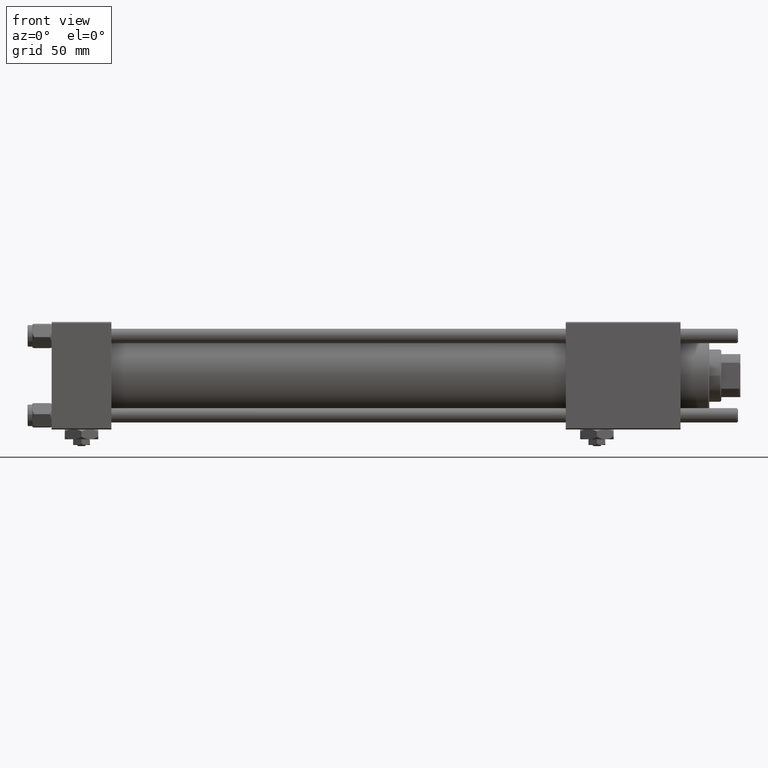
[diagram: clean part render]
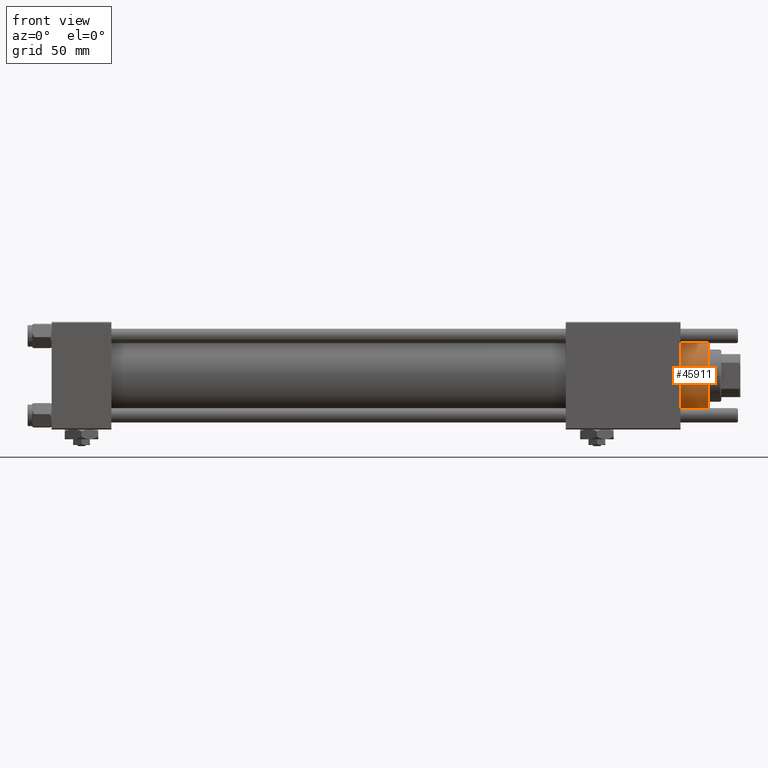
[diagram: same view with one face highlighted and labeled with its STEP entity id]
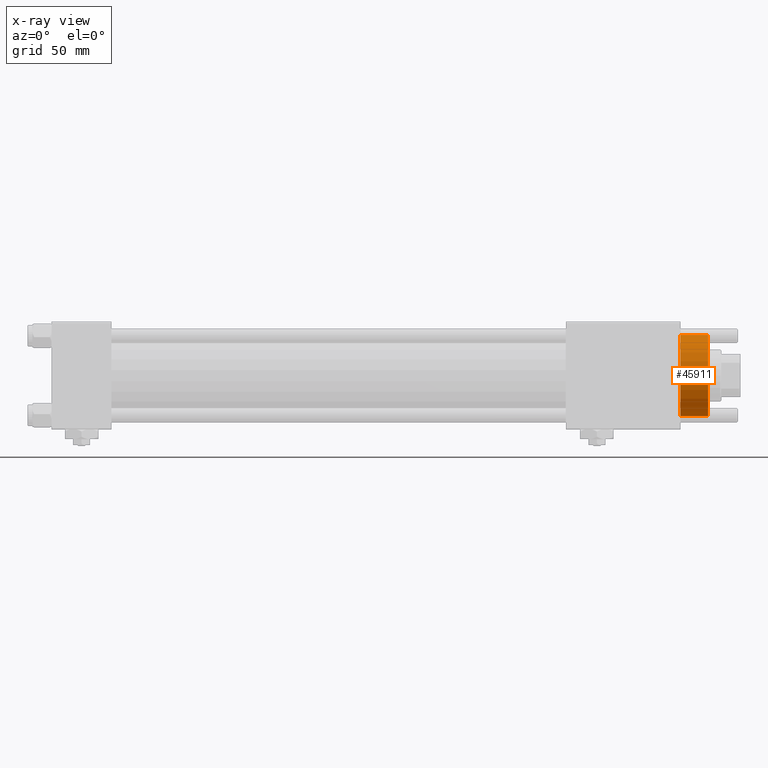
[diagram: x-ray of the same camera — body ghosted, the highlighted face saturated]
A machine part, front view. The second image highlights one B-rep face of the part: STEP entity #45911.
The next image is the same camera in x-ray: the body ghosted, the highlighted face saturated — about 0% of this face is hidden behind the body in this view.
In plain terms, the highlighted cylindrical surface (partial cylindrical patch) has radius 17 mm, axis along (-1, -0, 0).
Its self-contained STEP definition (entity closure, byte-faithful):
#276 = AXIS2_PLACEMENT_3D ( 'NONE', #32906, #9986, #6104 ) ;
#3202 = DIRECTION ( 'NONE',  ( 1.000000000000000000, 0.000000000000000000, 0.000000000000000000 ) ) ;
#4375 = CARTESIAN_POINT ( 'NONE',  ( 0.000000000000000000, 0.000000000000000000, 28.69999999999999929 ) ) ;
#4589 = CARTESIAN_POINT ( 'NONE',  ( -17.00000000000000000, 0.000000000000000000, 40.70000000000000284 ) ) ;
#5396 = VERTEX_POINT ( 'NONE', #55165 ) ;
#6104 = DIRECTION ( 'NONE',  ( -1.000000000000000000, 0.000000000000000000, 0.000000000000000000 ) ) ;
#8212 = CIRCLE ( 'NONE', #24333, 17.00000000000000000 ) ;
#9904 = DIRECTION ( 'NONE',  ( 0.000000000000000000, 0.000000000000000000, -1.000000000000000000 ) ) ;
#9986 = DIRECTION ( 'NONE',  ( -0.000000000000000000, -0.000000000000000000, -1.000000000000000000 ) ) ;
#11900 = DIRECTION ( 'NONE',  ( 1.000000000000000000, 0.000000000000000000, 0.000000000000000000 ) ) ;
#12223 = EDGE_CURVE ( 'NONE', #51120, #5396, #39306, .T. ) ;
#13820 = VERTEX_POINT ( 'NONE', #47765 ) ;
#18184 = EDGE_CURVE ( 'NONE', #13820, #51120, #19158, .T. ) ;
#18866 = DIRECTION ( 'NONE',  ( -0.000000000000000000, -0.000000000000000000, -1.000000000000000000 ) ) ;
#19158 = LINE ( 'NONE', #4589, #43262 ) ;
#20820 = CARTESIAN_POINT ( 'NONE',  ( 0.000000000000000000, 0.000000000000000000, 40.19999999999999574 ) ) ;
#22550 = EDGE_LOOP ( 'NONE', ( #43762, #47695, #44309, #32024 ) ) ;
#24333 = AXIS2_PLACEMENT_3D ( 'NONE', #20820, #9904, #11900 ) ;
#27606 = VECTOR ( 'NONE', #56311, 1000.000000000000000 ) ;
#32024 = ORIENTED_EDGE ( 'NONE', *, *, #12223, .T. ) ;
#32312 = CYLINDRICAL_SURFACE ( 'NONE', #276, 17.00000000000000000 ) ;
#32906 = CARTESIAN_POINT ( 'NONE',  ( 0.000000000000000000, 0.000000000000000000, 40.70000000000000284 ) ) ;
#34005 = LINE ( 'NONE', #52138, #27606 ) ;
#34111 = EDGE_CURVE ( 'NONE', #58096, #5396, #34005, .T. ) ;
#35650 = DIRECTION ( 'NONE',  ( 0.000000000000000000, 0.000000000000000000, 1.000000000000000000 ) ) ;
#39306 = CIRCLE ( 'NONE', #44051, 17.00000000000000000 ) ;
#43262 = VECTOR ( 'NONE', #18866, 1000.000000000000000 ) ;
#43762 = ORIENTED_EDGE ( 'NONE', *, *, #34111, .F. ) ;
#44051 = AXIS2_PLACEMENT_3D ( 'NONE', #4375, #35650, #3202 ) ;
#44309 = ORIENTED_EDGE ( 'NONE', *, *, #18184, .T. ) ;
#45911 = ADVANCED_FACE ( 'NONE', ( #46003 ), #32312, .T. ) ;
#46003 = FACE_OUTER_BOUND ( 'NONE', #22550, .T. ) ;
#47695 = ORIENTED_EDGE ( 'NONE', *, *, #56980, .T. ) ;
#47765 = CARTESIAN_POINT ( 'NONE',  ( -17.00000000000000000, 0.000000000000000000, 40.19999999999999574 ) ) ;
#51120 = VERTEX_POINT ( 'NONE', #56657 ) ;
#52138 = CARTESIAN_POINT ( 'NONE',  ( 17.00000000000000000, 2.081899558550500280E-15, 40.70000000000000284 ) ) ;
#55165 = CARTESIAN_POINT ( 'NONE',  ( 17.00000000000000000, 2.081899558550500280E-15, 28.69999999999999929 ) ) ;
#56311 = DIRECTION ( 'NONE',  ( -0.000000000000000000, -0.000000000000000000, -1.000000000000000000 ) ) ;
#56657 = CARTESIAN_POINT ( 'NONE',  ( -17.00000000000000000, 0.000000000000000000, 28.69999999999999929 ) ) ;
#56980 = EDGE_CURVE ( 'NONE', #58096, #13820, #8212, .T. ) ;
#58096 = VERTEX_POINT ( 'NONE', #58150 ) ;
#58150 = CARTESIAN_POINT ( 'NONE',  ( 17.00000000000000000, 2.081899558550500280E-15, 40.19999999999999574 ) ) ;